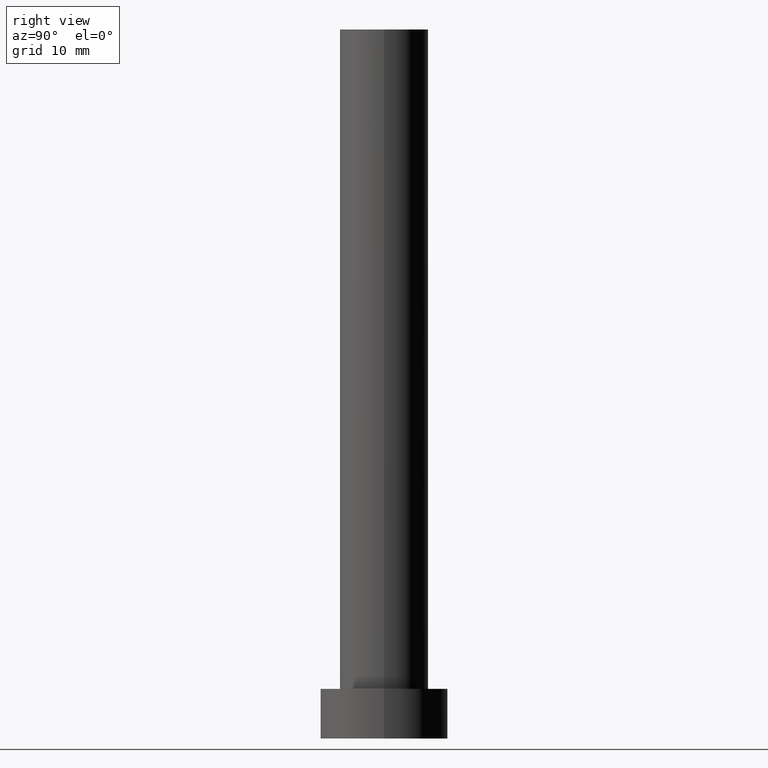
[diagram: clean part render]
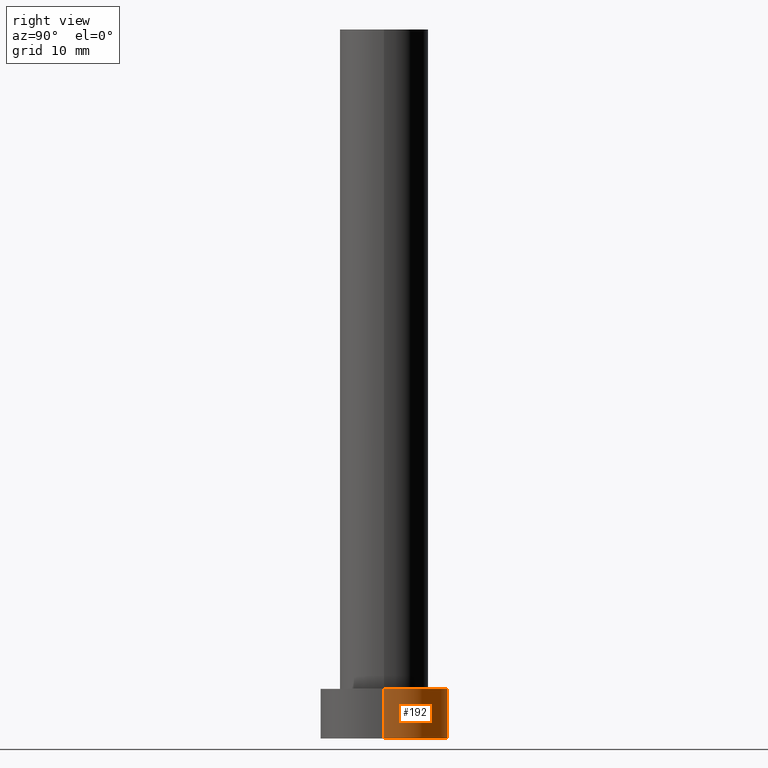
[diagram: same view with one face highlighted and labeled with its STEP entity id]
A machine part, right view. The second image highlights one B-rep face of the part: STEP entity #192.
In plain terms, the highlighted cylindrical surface (partial cylindrical patch) has radius 9 mm, axis along (-0, -0, -1).
Its self-contained STEP definition (entity closure, byte-faithful):
#10 = EDGE_CURVE ( 'NONE', #221, #78, #231, .T. ) ;
#11 = VERTEX_POINT ( 'NONE', #142 ) ;
#13 = ORIENTED_EDGE ( 'NONE', *, *, #230, .T. ) ;
#19 = EDGE_CURVE ( 'NONE', #201, #11, #144, .T. ) ;
#22 = AXIS2_PLACEMENT_3D ( 'NONE', #197, #27, #121 ) ;
#23 = DIRECTION ( 'NONE',  ( -0.000000000000000000, -0.000000000000000000, -1.000000000000000000 ) ) ;
#27 = DIRECTION ( 'NONE',  ( 0.000000000000000000, 0.000000000000000000, 1.000000000000000000 ) ) ;
#43 = VECTOR ( 'NONE', #64, 1000.000000000000000 ) ;
#56 = CARTESIAN_POINT ( 'NONE',  ( 9.000000000000000000, 1.102182119232617714E-15, 7.000000000000000000 ) ) ;
#57 = AXIS2_PLACEMENT_3D ( 'NONE', #158, #122, #119 ) ;
#63 = AXIS2_PLACEMENT_3D ( 'NONE', #179, #77, #146 ) ;
#64 = DIRECTION ( 'NONE',  ( -0.000000000000000000, -0.000000000000000000, -1.000000000000000000 ) ) ;
#77 = DIRECTION ( 'NONE',  ( -0.000000000000000000, -0.000000000000000000, -1.000000000000000000 ) ) ;
#78 = VERTEX_POINT ( 'NONE', #208 ) ;
#89 = VECTOR ( 'NONE', #23, 1000.000000000000000 ) ;
#94 = FACE_OUTER_BOUND ( 'NONE', #189, .T. ) ;
#119 = DIRECTION ( 'NONE',  ( 1.000000000000000000, 0.000000000000000000, 0.000000000000000000 ) ) ;
#120 = CYLINDRICAL_SURFACE ( 'NONE', #63, 9.000000000000000000 ) ;
#121 = DIRECTION ( 'NONE',  ( 1.000000000000000000, 0.000000000000000000, 0.000000000000000000 ) ) ;
#122 = DIRECTION ( 'NONE',  ( 0.000000000000000000, 0.000000000000000000, 1.000000000000000000 ) ) ;
#133 = CARTESIAN_POINT ( 'NONE',  ( -9.000000000000000000, 0.000000000000000000, 7.000000000000000000 ) ) ;
#142 = CARTESIAN_POINT ( 'NONE',  ( -9.000000000000000000, 0.000000000000000000, 7.000000000000000000 ) ) ;
#144 = CIRCLE ( 'NONE', #22, 9.000000000000000000 ) ;
#146 = DIRECTION ( 'NONE',  ( -1.000000000000000000, 0.000000000000000000, 0.000000000000000000 ) ) ;
#158 = CARTESIAN_POINT ( 'NONE',  ( 0.000000000000000000, 0.000000000000000000, 0.000000000000000000 ) ) ;
#165 = ORIENTED_EDGE ( 'NONE', *, *, #10, .T. ) ;
#167 = CARTESIAN_POINT ( 'NONE',  ( 9.000000000000000000, 1.102182119232617714E-15, 7.000000000000000000 ) ) ;
#179 = CARTESIAN_POINT ( 'NONE',  ( 0.000000000000000000, 0.000000000000000000, 7.000000000000000000 ) ) ;
#189 = EDGE_LOOP ( 'NONE', ( #206, #13, #165, #243 ) ) ;
#192 = ADVANCED_FACE ( 'NONE', ( #94 ), #120, .T. ) ;
#197 = CARTESIAN_POINT ( 'NONE',  ( 0.000000000000000000, 0.000000000000000000, 7.000000000000000000 ) ) ;
#198 = EDGE_CURVE ( 'NONE', #11, #78, #253, .T. ) ;
#201 = VERTEX_POINT ( 'NONE', #56 ) ;
#206 = ORIENTED_EDGE ( 'NONE', *, *, #19, .F. ) ;
#208 = CARTESIAN_POINT ( 'NONE',  ( -9.000000000000000000, 0.000000000000000000, 0.000000000000000000 ) ) ;
#209 = CARTESIAN_POINT ( 'NONE',  ( 9.000000000000000000, 1.102182119232617714E-15, 0.000000000000000000 ) ) ;
#221 = VERTEX_POINT ( 'NONE', #209 ) ;
#230 = EDGE_CURVE ( 'NONE', #201, #221, #254, .T. ) ;
#231 = CIRCLE ( 'NONE', #57, 9.000000000000000000 ) ;
#243 = ORIENTED_EDGE ( 'NONE', *, *, #198, .F. ) ;
#253 = LINE ( 'NONE', #133, #89 ) ;
#254 = LINE ( 'NONE', #167, #43 ) ;